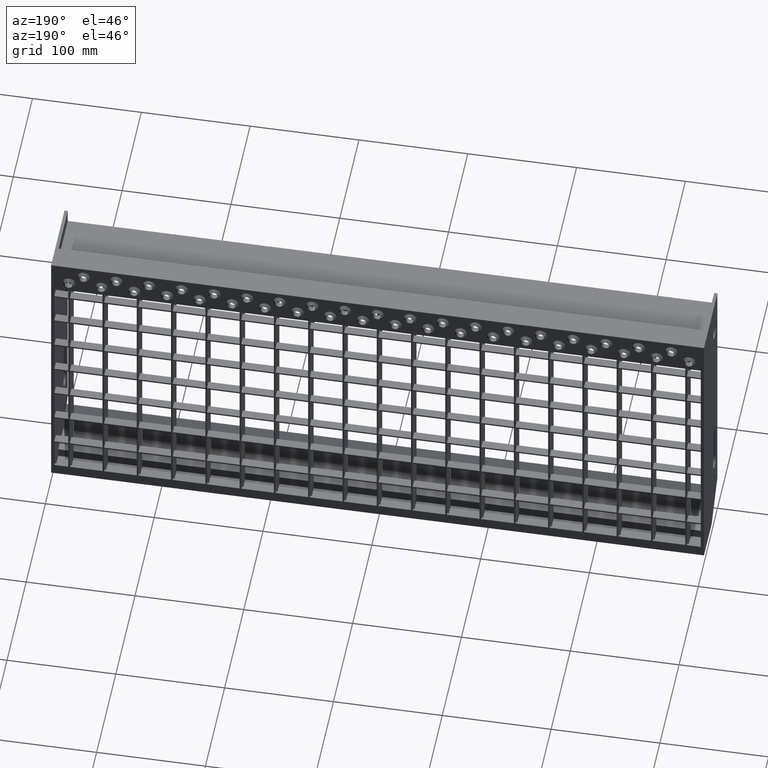
[diagram: clean part render]
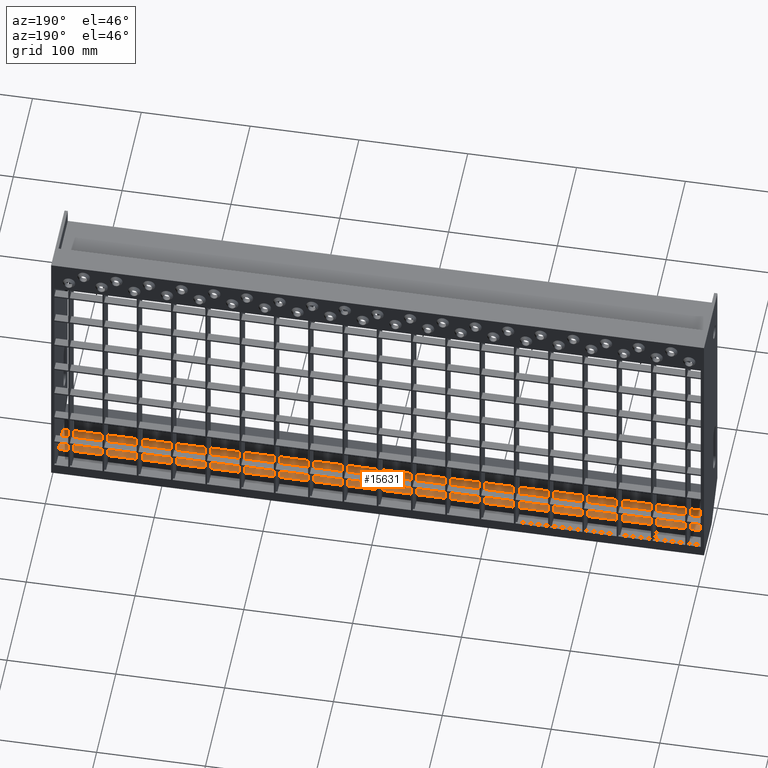
[diagram: same view with one face highlighted and labeled with its STEP entity id]
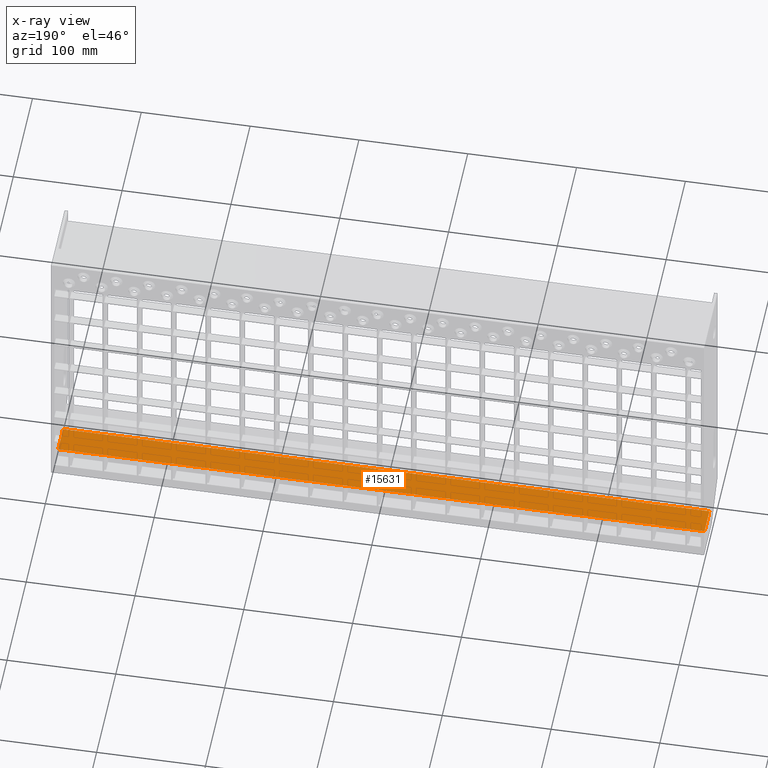
[diagram: x-ray of the same camera — body ghosted, the highlighted face saturated]
A machine part, auxiliary view. The second image highlights one B-rep face of the part: STEP entity #15631.
The next image is the same camera in x-ray: the body ghosted, the highlighted face saturated — about 0% of this face is hidden behind the body in this view.
In plain terms, the highlighted planar face has unit normal (0, 0, -1).
Its self-contained STEP definition (entity closure, byte-faithful):
#13 = AXIS2_PLACEMENT_3D ( 'NONE', #10125, #18168, #4363 ) ;
#163 = VERTEX_POINT ( 'NONE', #19373 ) ;
#199 = CARTESIAN_POINT ( 'NONE',  ( -373.1577310586390000, 50.00000000000011400, -259.5000000000000000 ) ) ;
#214 = ORIENTED_EDGE ( 'NONE', *, *, #5319, .T. ) ;
#280 = PLANE ( 'NONE',  #13 ) ;
#447 = DIRECTION ( 'NONE',  ( 1.000000000000000000, -0.0000000000000000000, -0.0000000000000000000 ) ) ;
#499 = ORIENTED_EDGE ( 'NONE', *, *, #5997, .F. ) ;
#504 = VERTEX_POINT ( 'NONE', #562 ) ;
#562 = CARTESIAN_POINT ( 'NONE',  ( -63.75000000000000000, 50.00000000000000000, -259.5000000000000000 ) ) ;
#588 = CARTESIAN_POINT ( 'NONE',  ( -373.1577310586390000, 50.00000000000011400, -259.5000000000000000 ) ) ;
#608 = VECTOR ( 'NONE', #23173, 1000.000000000000000 ) ;
#809 = CARTESIAN_POINT ( 'NONE',  ( -373.1577310586390000, 50.00000000000011400, -259.5000000000000000 ) ) ;
#959 = DIRECTION ( 'NONE',  ( 1.000000000000000000, -0.0000000000000000000, -0.0000000000000000000 ) ) ;
#1279 = CARTESIAN_POINT ( 'NONE',  ( -373.1577310586390000, 50.00000000000011400, -259.5000000000000000 ) ) ;
#1287 = EDGE_CURVE ( 'NONE', #6046, #11088, #1543, .T. ) ;
#1346 = EDGE_CURVE ( 'NONE', #163, #12647, #2184, .T. ) ;
#1410 = EDGE_CURVE ( 'NONE', #13198, #163, #21936, .T. ) ;
#1543 = LINE ( 'NONE', #7298, #16066 ) ;
#1581 = VECTOR ( 'NONE', #20371, 1000.000000000000000 ) ;
#1616 = LINE ( 'NONE', #199, #14273 ) ;
#1812 = LINE ( 'NONE', #12202, #15129 ) ;
#2184 = LINE ( 'NONE', #3425, #15198 ) ;
#2232 = ORIENTED_EDGE ( 'NONE', *, *, #22222, .F. ) ;
#2430 = DIRECTION ( 'NONE',  ( 1.000000000000000000, -0.0000000000000000000, -0.0000000000000000000 ) ) ;
#2435 = ORIENTED_EDGE ( 'NONE', *, *, #13835, .F. ) ;
#2456 = VERTEX_POINT ( 'NONE', #18146 ) ;
#2524 = CARTESIAN_POINT ( 'NONE',  ( -373.1577310586390000, 50.00000000000011400, -259.5000000000000000 ) ) ;
#2591 = ORIENTED_EDGE ( 'NONE', *, *, #22246, .F. ) ;
#2774 = VERTEX_POINT ( 'NONE', #12895 ) ;
#2871 = EDGE_CURVE ( 'NONE', #21068, #15287, #22468, .T. ) ;
#2927 = ORIENTED_EDGE ( 'NONE', *, *, #10778, .T. ) ;
#2953 = DIRECTION ( 'NONE',  ( 1.000000000000000000, -0.0000000000000000000, -0.0000000000000000000 ) ) ;
#2987 = EDGE_CURVE ( 'NONE', #5108, #25135, #24624, .T. ) ;
#3207 = CARTESIAN_POINT ( 'NONE',  ( 297.0000000000000000, 50.00000000000011400, -259.5000000000000000 ) ) ;
#3226 = VECTOR ( 'NONE', #25240, 1000.000000000000000 ) ;
#3255 = LINE ( 'NONE', #18997, #4482 ) ;
#3316 = CARTESIAN_POINT ( 'NONE',  ( 62.25000000000000000, 50.00000000000000000, -259.5000000000000000 ) ) ;
#3318 = EDGE_CURVE ( 'NONE', #15064, #21068, #10976, .T. ) ;
#3394 = CARTESIAN_POINT ( 'NONE',  ( -30.75000000000000000, 50.00000000000000000, -259.5000000000000000 ) ) ;
#3425 = CARTESIAN_POINT ( 'NONE',  ( -373.1577310586390000, 50.00000000000000000, -259.5000000000000000 ) ) ;
#3554 = EDGE_CURVE ( 'NONE', #17658, #9423, #18068, .T. ) ;
#3690 = VERTEX_POINT ( 'NONE', #13962 ) ;
#3857 = VECTOR ( 'NONE', #23422, 1000.000000000000000 ) ;
#3878 = ORIENTED_EDGE ( 'NONE', *, *, #18549, .F. ) ;
#3964 = VECTOR ( 'NONE', #23636, 1000.000000000000000 ) ;
#4081 = VECTOR ( 'NONE', #959, 1000.000000000000000 ) ;
#4132 = CARTESIAN_POINT ( 'NONE',  ( 297.0000000000000000, 24.44974746830574100, -259.5000000000000000 ) ) ;
#4363 = DIRECTION ( 'NONE',  ( -1.000000000000000000, 0.0000000000000000000, -0.0000000000000000000 ) ) ;
#4463 = DIRECTION ( 'NONE',  ( 0.0000000000000000000, -1.000000000000000000, 0.0000000000000000000 ) ) ;
#4482 = VECTOR ( 'NONE', #2953, 1000.000000000000000 ) ;
#4703 = LINE ( 'NONE', #588, #13975 ) ;
#4836 = ORIENTED_EDGE ( 'NONE', *, *, #7848, .F. ) ;
#5108 = VERTEX_POINT ( 'NONE', #4132 ) ;
#5139 = ORIENTED_EDGE ( 'NONE', *, *, #11508, .F. ) ;
#5319 = EDGE_CURVE ( 'NONE', #2774, #14846, #14622, .T. ) ;
#5401 = DIRECTION ( 'NONE',  ( 1.000000000000000000, 0.0000000000000000000, 0.0000000000000000000 ) ) ;
#5436 = CARTESIAN_POINT ( 'NONE',  ( -93.75000000000000000, 50.00000000000000000, -259.5000000000000000 ) ) ;
#5542 = VECTOR ( 'NONE', #24230, 1000.000000000000000 ) ;
#5576 = EDGE_CURVE ( 'NONE', #6607, #10887, #4703, .T. ) ;
#5997 = EDGE_CURVE ( 'NONE', #2774, #15064, #9008, .T. ) ;
#6046 = VERTEX_POINT ( 'NONE', #20740 ) ;
#6573 = DIRECTION ( 'NONE',  ( 1.000000000000000000, -0.0000000000000000000, -0.0000000000000000000 ) ) ;
#6598 = LINE ( 'NONE', #15212, #3226 ) ;
#6607 = VERTEX_POINT ( 'NONE', #23145 ) ;
#7298 = CARTESIAN_POINT ( 'NONE',  ( -373.1577310586390000, 50.00000000000011400, -259.5000000000000000 ) ) ;
#7312 = DIRECTION ( 'NONE',  ( 1.000000000000000000, -0.0000000000000000000, -0.0000000000000000000 ) ) ;
#7783 = VECTOR ( 'NONE', #4463, 1000.000000000000000 ) ;
#7848 = EDGE_CURVE ( 'NONE', #12647, #25314, #23717, .T. ) ;
#8021 = ORIENTED_EDGE ( 'NONE', *, *, #1346, .F. ) ;
#8461 = VECTOR ( 'NONE', #7312, 1000.000000000000000 ) ;
#8736 = ORIENTED_EDGE ( 'NONE', *, *, #1410, .F. ) ;
#8988 = CARTESIAN_POINT ( 'NONE',  ( -373.1577310586390000, 50.00000000000011400, -259.5000000000000000 ) ) ;
#9008 = LINE ( 'NONE', #2524, #1581 ) ;
#9062 = VECTOR ( 'NONE', #6573, 1000.000000000000000 ) ;
#9217 = LINE ( 'NONE', #14113, #5542 ) ;
#9296 = CARTESIAN_POINT ( 'NONE',  ( -373.1577310586390000, 50.00000000000011400, -259.5000000000000000 ) ) ;
#9423 = VERTEX_POINT ( 'NONE', #21449 ) ;
#9791 = CARTESIAN_POINT ( 'NONE',  ( 0.7500000000000000000, 50.00000000000000000, -259.5000000000000000 ) ) ;
#10024 = DIRECTION ( 'NONE',  ( 1.000000000000000000, -0.0000000000000000000, -0.0000000000000000000 ) ) ;
#10125 = CARTESIAN_POINT ( 'NONE',  ( -373.1577310586390000, 24.44974746830574100, -259.5000000000000000 ) ) ;
#10202 = VECTOR ( 'NONE', #21097, 1000.000000000000000 ) ;
#10778 = EDGE_CURVE ( 'NONE', #14846, #5108, #13795, .T. ) ;
#10887 = VERTEX_POINT ( 'NONE', #3316 ) ;
#10976 = LINE ( 'NONE', #12865, #8461 ) ;
#11088 = VERTEX_POINT ( 'NONE', #17476 ) ;
#11471 = CARTESIAN_POINT ( 'NONE',  ( -95.25000000000000000, 50.00000000000000000, -259.5000000000000000 ) ) ;
#11508 = EDGE_CURVE ( 'NONE', #10887, #17658, #19810, .T. ) ;
#11612 = CARTESIAN_POINT ( 'NONE',  ( 297.0000000000000000, 24.44974746830574100, -259.5000000000000000 ) ) ;
#11899 = VERTEX_POINT ( 'NONE', #14594 ) ;
#12121 = FACE_OUTER_BOUND ( 'NONE', #24952, .T. ) ;
#12157 = VERTEX_POINT ( 'NONE', #5436 ) ;
#12202 = CARTESIAN_POINT ( 'NONE',  ( -373.1577310586390000, 50.00000000000011400, -259.5000000000000000 ) ) ;
#12536 = DIRECTION ( 'NONE',  ( 1.000000000000000000, -0.0000000000000000000, -0.0000000000000000000 ) ) ;
#12647 = VERTEX_POINT ( 'NONE', #9791 ) ;
#12865 = CARTESIAN_POINT ( 'NONE',  ( -373.1577310586390000, 50.00000000000011400, -259.5000000000000000 ) ) ;
#12895 = CARTESIAN_POINT ( 'NONE',  ( -297.0000000000000000, 50.00000000000011400, -259.5000000000000000 ) ) ;
#12911 = ORIENTED_EDGE ( 'NONE', *, *, #5576, .F. ) ;
#12972 = VECTOR ( 'NONE', #2430, 1000.000000000000000 ) ;
#13198 = VERTEX_POINT ( 'NONE', #3394 ) ;
#13384 = ORIENTED_EDGE ( 'NONE', *, *, #14650, .F. ) ;
#13512 = ORIENTED_EDGE ( 'NONE', *, *, #21477, .F. ) ;
#13795 = LINE ( 'NONE', #24697, #14421 ) ;
#13835 = EDGE_CURVE ( 'NONE', #3690, #13198, #6598, .T. ) ;
#13858 = CARTESIAN_POINT ( 'NONE',  ( -373.1577310586390000, 50.00000000000011400, -259.5000000000000000 ) ) ;
#13962 = CARTESIAN_POINT ( 'NONE',  ( -32.25000000000000000, 50.00000000000000000, -259.5000000000000000 ) ) ;
#13975 = VECTOR ( 'NONE', #12536, 1000.000000000000000 ) ;
#14113 = CARTESIAN_POINT ( 'NONE',  ( -373.1577310586390000, 50.00000000000011400, -259.5000000000000000 ) ) ;
#14273 = VECTOR ( 'NONE', #447, 1000.000000000000000 ) ;
#14332 = LINE ( 'NONE', #16444, #9062 ) ;
#14421 = VECTOR ( 'NONE', #20469, 1000.000000000000000 ) ;
#14594 = CARTESIAN_POINT ( 'NONE',  ( -62.25000000000000000, 50.00000000000000000, -259.5000000000000000 ) ) ;
#14622 = LINE ( 'NONE', #24118, #7783 ) ;
#14650 = EDGE_CURVE ( 'NONE', #15287, #12157, #14332, .T. ) ;
#14846 = VERTEX_POINT ( 'NONE', #24910 ) ;
#15064 = VERTEX_POINT ( 'NONE', #20415 ) ;
#15129 = VECTOR ( 'NONE', #10024, 1000.000000000000000 ) ;
#15198 = VECTOR ( 'NONE', #5401, 1000.000000000000000 ) ;
#15212 = CARTESIAN_POINT ( 'NONE',  ( -373.1577310586390000, 50.00000000000011400, -259.5000000000000000 ) ) ;
#15268 = DIRECTION ( 'NONE',  ( 1.000000000000000000, -0.0000000000000000000, -0.0000000000000000000 ) ) ;
#15287 = VERTEX_POINT ( 'NONE', #11471 ) ;
#15495 = VECTOR ( 'NONE', #19786, 1000.000000000000000 ) ;
#15623 = EDGE_CURVE ( 'NONE', #2456, #25135, #1616, .T. ) ;
#15631 = ADVANCED_FACE ( 'NONE', ( #12121 ), #280, .F. ) ;
#15739 = CARTESIAN_POINT ( 'NONE',  ( -125.2500000000000000, 50.00000000000000000, -259.5000000000000000 ) ) ;
#16066 = VECTOR ( 'NONE', #15268, 1000.000000000000000 ) ;
#16444 = CARTESIAN_POINT ( 'NONE',  ( -373.1577310586390000, 50.00000000000011400, -259.5000000000000000 ) ) ;
#16990 = ORIENTED_EDGE ( 'NONE', *, *, #15623, .F. ) ;
#17146 = ORIENTED_EDGE ( 'NONE', *, *, #24513, .F. ) ;
#17193 = CARTESIAN_POINT ( 'NONE',  ( -373.1577310586390000, 50.00000000000011400, -259.5000000000000000 ) ) ;
#17476 = CARTESIAN_POINT ( 'NONE',  ( 125.2500000000000000, 50.00000000000000000, -259.5000000000000000 ) ) ;
#17658 = VERTEX_POINT ( 'NONE', #25039 ) ;
#17693 = ORIENTED_EDGE ( 'NONE', *, *, #3554, .F. ) ;
#17851 = LINE ( 'NONE', #809, #19981 ) ;
#18068 = LINE ( 'NONE', #25059, #3857 ) ;
#18146 = CARTESIAN_POINT ( 'NONE',  ( 126.7500000000000000, 50.00000000000000000, -259.5000000000000000 ) ) ;
#18168 = DIRECTION ( 'NONE',  ( 0.0000000000000000000, 0.0000000000000000000, -1.000000000000000000 ) ) ;
#18549 = EDGE_CURVE ( 'NONE', #25314, #6607, #17851, .T. ) ;
#18610 = DIRECTION ( 'NONE',  ( 1.000000000000000000, -0.0000000000000000000, -0.0000000000000000000 ) ) ;
#18973 = ORIENTED_EDGE ( 'NONE', *, *, #2871, .F. ) ;
#18997 = CARTESIAN_POINT ( 'NONE',  ( -373.1577310586390000, 50.00000000000011400, -259.5000000000000000 ) ) ;
#19373 = CARTESIAN_POINT ( 'NONE',  ( -0.7500000000000000000, 50.00000000000000000, -259.5000000000000000 ) ) ;
#19746 = CARTESIAN_POINT ( 'NONE',  ( 30.75000000000000000, 50.00000000000000000, -259.5000000000000000 ) ) ;
#19786 = DIRECTION ( 'NONE',  ( 1.000000000000000000, -0.0000000000000000000, -0.0000000000000000000 ) ) ;
#19810 = LINE ( 'NONE', #8988, #4081 ) ;
#19981 = VECTOR ( 'NONE', #18610, 1000.000000000000000 ) ;
#20173 = EDGE_CURVE ( 'NONE', #9423, #6046, #20693, .T. ) ;
#20320 = LINE ( 'NONE', #22093, #12972 ) ;
#20371 = DIRECTION ( 'NONE',  ( 1.000000000000000000, -0.0000000000000000000, -0.0000000000000000000 ) ) ;
#20415 = CARTESIAN_POINT ( 'NONE',  ( -126.7500000000000000, 50.00000000000000000, -259.5000000000000000 ) ) ;
#20469 = DIRECTION ( 'NONE',  ( 1.000000000000000000, -0.0000000000000000000, -0.0000000000000000000 ) ) ;
#20693 = LINE ( 'NONE', #9296, #10202 ) ;
#20740 = CARTESIAN_POINT ( 'NONE',  ( 95.25000000000000000, 50.00000000000000000, -259.5000000000000000 ) ) ;
#21068 = VERTEX_POINT ( 'NONE', #15739 ) ;
#21097 = DIRECTION ( 'NONE',  ( 1.000000000000000000, -0.0000000000000000000, -0.0000000000000000000 ) ) ;
#21409 = ORIENTED_EDGE ( 'NONE', *, *, #20173, .F. ) ;
#21449 = CARTESIAN_POINT ( 'NONE',  ( 93.75000000000000000, 50.00000000000000000, -259.5000000000000000 ) ) ;
#21477 = EDGE_CURVE ( 'NONE', #12157, #504, #9217, .T. ) ;
#21576 = ORIENTED_EDGE ( 'NONE', *, *, #2987, .T. ) ;
#21936 = LINE ( 'NONE', #13858, #15495 ) ;
#22093 = CARTESIAN_POINT ( 'NONE',  ( -373.1577310586390000, 50.00000000000011400, -259.5000000000000000 ) ) ;
#22222 = EDGE_CURVE ( 'NONE', #11899, #3690, #20320, .T. ) ;
#22246 = EDGE_CURVE ( 'NONE', #504, #11899, #1812, .T. ) ;
#22468 = LINE ( 'NONE', #17193, #24937 ) ;
#22816 = ORIENTED_EDGE ( 'NONE', *, *, #1287, .F. ) ;
#23145 = CARTESIAN_POINT ( 'NONE',  ( 32.25000000000000000, 50.00000000000000000, -259.5000000000000000 ) ) ;
#23173 = DIRECTION ( 'NONE',  ( 1.000000000000000000, -0.0000000000000000000, -0.0000000000000000000 ) ) ;
#23226 = DIRECTION ( 'NONE',  ( 1.000000000000000000, -0.0000000000000000000, -0.0000000000000000000 ) ) ;
#23422 = DIRECTION ( 'NONE',  ( 1.000000000000000000, -0.0000000000000000000, -0.0000000000000000000 ) ) ;
#23636 = DIRECTION ( 'NONE',  ( 0.0000000000000000000, 1.000000000000000000, 0.0000000000000000000 ) ) ;
#23717 = LINE ( 'NONE', #1279, #608 ) ;
#23920 = ORIENTED_EDGE ( 'NONE', *, *, #3318, .F. ) ;
#24118 = CARTESIAN_POINT ( 'NONE',  ( -297.0000000000000000, 24.44974746830574100, -259.5000000000000000 ) ) ;
#24230 = DIRECTION ( 'NONE',  ( 1.000000000000000000, -0.0000000000000000000, -0.0000000000000000000 ) ) ;
#24513 = EDGE_CURVE ( 'NONE', #11088, #2456, #3255, .T. ) ;
#24624 = LINE ( 'NONE', #11612, #3964 ) ;
#24697 = CARTESIAN_POINT ( 'NONE',  ( -373.1577310586390000, 24.44974746830574100, -259.5000000000000000 ) ) ;
#24910 = CARTESIAN_POINT ( 'NONE',  ( -297.0000000000000000, 24.44974746830574100, -259.5000000000000000 ) ) ;
#24937 = VECTOR ( 'NONE', #23226, 1000.000000000000000 ) ;
#24952 = EDGE_LOOP ( 'NONE', ( #499, #214, #2927, #21576, #16990, #17146, #22816, #21409, #17693, #5139, #12911, #3878, #4836, #8021, #8736, #2435, #2232, #2591, #13512, #13384, #18973, #23920 ) ) ;
#25039 = CARTESIAN_POINT ( 'NONE',  ( 63.75000000000000000, 50.00000000000000000, -259.5000000000000000 ) ) ;
#25059 = CARTESIAN_POINT ( 'NONE',  ( -373.1577310586390000, 50.00000000000011400, -259.5000000000000000 ) ) ;
#25135 = VERTEX_POINT ( 'NONE', #3207 ) ;
#25240 = DIRECTION ( 'NONE',  ( 1.000000000000000000, -0.0000000000000000000, -0.0000000000000000000 ) ) ;
#25314 = VERTEX_POINT ( 'NONE', #19746 ) ;